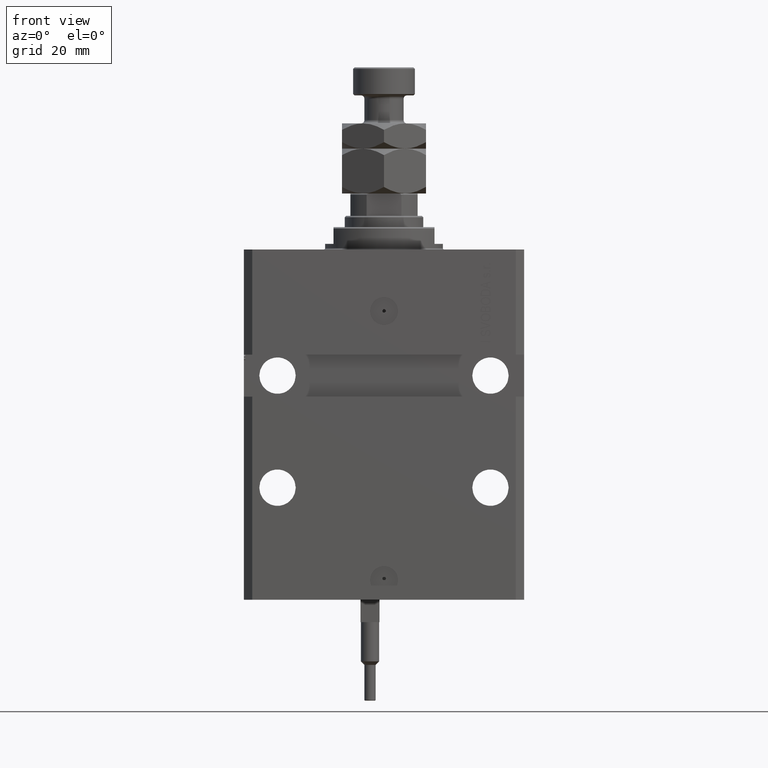
[diagram: clean part render]
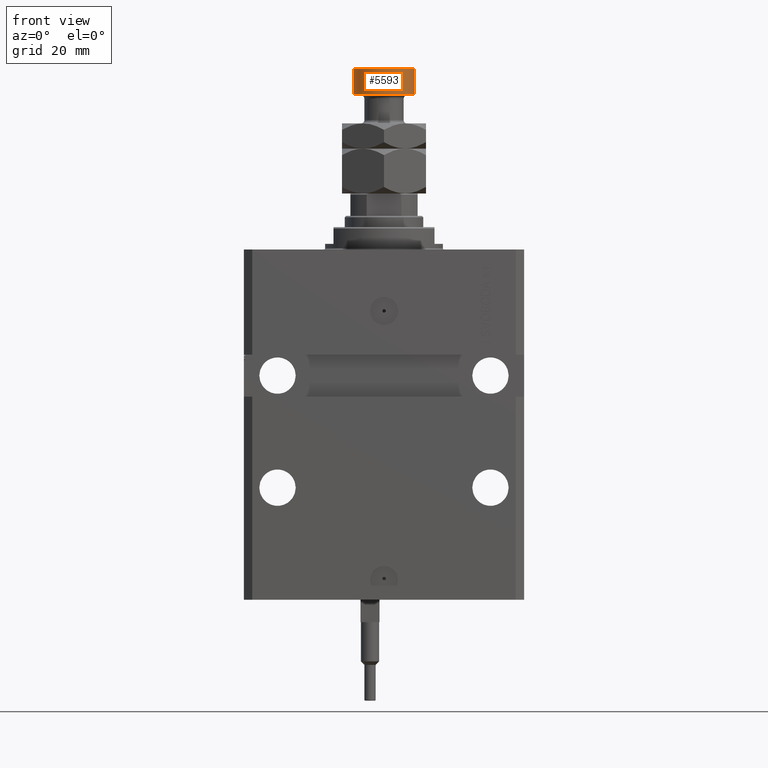
[diagram: same view with one face highlighted and labeled with its STEP entity id]
A machine part, front view. The second image highlights one B-rep face of the part: STEP entity #5593.
In plain terms, the highlighted cylindrical surface (edge-blend (fillet) strip) has radius 11 mm, axis along (-0, -0, -1).
Its self-contained STEP definition (entity closure, byte-faithful):
#624 = DIRECTION ( 'NONE',  ( -0.000000000000000000, -0.000000000000000000, -1.000000000000000000 ) ) ;
#751 = CYLINDRICAL_SURFACE ( 'NONE', #44406, 11.00000000000000000 ) ;
#1891 = CIRCLE ( 'NONE', #30502, 11.00000000000000000 ) ;
#4290 = VERTEX_POINT ( 'NONE', #12245 ) ;
#5593 = ADVANCED_FACE ( 'NONE', ( #13465 ), #751, .T. ) ;
#5962 = LINE ( 'NONE', #10555, #36596 ) ;
#6465 = ORIENTED_EDGE ( 'NONE', *, *, #48948, .T. ) ;
#8118 = ORIENTED_EDGE ( 'NONE', *, *, #31273, .F. ) ;
#9276 = CARTESIAN_POINT ( 'NONE',  ( 11.00000000000000000, 1.347111479062088405E-15, 35.50000000000001421 ) ) ;
#10555 = CARTESIAN_POINT ( 'NONE',  ( -11.00000000000000000, 0.000000000000000000, 45.00000000000000711 ) ) ;
#10981 = VERTEX_POINT ( 'NONE', #36302 ) ;
#12245 = CARTESIAN_POINT ( 'NONE',  ( -11.00000000000000000, 0.000000000000000000, 35.50000000000001421 ) ) ;
#13465 = FACE_OUTER_BOUND ( 'NONE', #19756, .T. ) ;
#15743 = VERTEX_POINT ( 'NONE', #9276 ) ;
#19756 = EDGE_LOOP ( 'NONE', ( #8118, #46982, #6465, #34214 ) ) ;
#21562 = EDGE_CURVE ( 'NONE', #10981, #37934, #1891, .T. ) ;
#22094 = DIRECTION ( 'NONE',  ( -0.000000000000000000, -0.000000000000000000, -1.000000000000000000 ) ) ;
#24339 = VECTOR ( 'NONE', #624, 1000.000000000000000 ) ;
#24931 = CARTESIAN_POINT ( 'NONE',  ( 11.00000000000000000, 1.347111479062088405E-15, 45.00000000000000711 ) ) ;
#25997 = CIRCLE ( 'NONE', #34206, 11.00000000000000000 ) ;
#30089 = CARTESIAN_POINT ( 'NONE',  ( 0.000000000000000000, 0.000000000000000000, 35.50000000000001421 ) ) ;
#30502 = AXIS2_PLACEMENT_3D ( 'NONE', #34225, #42687, #33721 ) ;
#31273 = EDGE_CURVE ( 'NONE', #10981, #15743, #44186, .T. ) ;
#31488 = DIRECTION ( 'NONE',  ( -1.000000000000000000, 0.000000000000000000, 0.000000000000000000 ) ) ;
#31737 = CARTESIAN_POINT ( 'NONE',  ( -11.00000000000000000, 0.000000000000000000, 44.50000000000001421 ) ) ;
#33721 = DIRECTION ( 'NONE',  ( 1.000000000000000000, 0.000000000000000000, 0.000000000000000000 ) ) ;
#34206 = AXIS2_PLACEMENT_3D ( 'NONE', #30089, #49332, #37778 ) ;
#34214 = ORIENTED_EDGE ( 'NONE', *, *, #35734, .T. ) ;
#34225 = CARTESIAN_POINT ( 'NONE',  ( 0.000000000000000000, 0.000000000000000000, 44.50000000000001421 ) ) ;
#35734 = EDGE_CURVE ( 'NONE', #4290, #15743, #25997, .T. ) ;
#36302 = CARTESIAN_POINT ( 'NONE',  ( 11.00000000000000000, 1.347111479062088405E-15, 44.50000000000001421 ) ) ;
#36596 = VECTOR ( 'NONE', #22094, 1000.000000000000000 ) ;
#37778 = DIRECTION ( 'NONE',  ( 1.000000000000000000, 0.000000000000000000, 0.000000000000000000 ) ) ;
#37934 = VERTEX_POINT ( 'NONE', #31737 ) ;
#42687 = DIRECTION ( 'NONE',  ( 0.000000000000000000, 0.000000000000000000, -1.000000000000000000 ) ) ;
#43809 = CARTESIAN_POINT ( 'NONE',  ( 0.000000000000000000, 0.000000000000000000, 45.00000000000000711 ) ) ;
#44186 = LINE ( 'NONE', #24931, #24339 ) ;
#44406 = AXIS2_PLACEMENT_3D ( 'NONE', #43809, #46873, #31488 ) ;
#46873 = DIRECTION ( 'NONE',  ( -0.000000000000000000, -0.000000000000000000, -1.000000000000000000 ) ) ;
#46982 = ORIENTED_EDGE ( 'NONE', *, *, #21562, .T. ) ;
#48948 = EDGE_CURVE ( 'NONE', #37934, #4290, #5962, .T. ) ;
#49332 = DIRECTION ( 'NONE',  ( -0.000000000000000000, -0.000000000000000000, 1.000000000000000000 ) ) ;